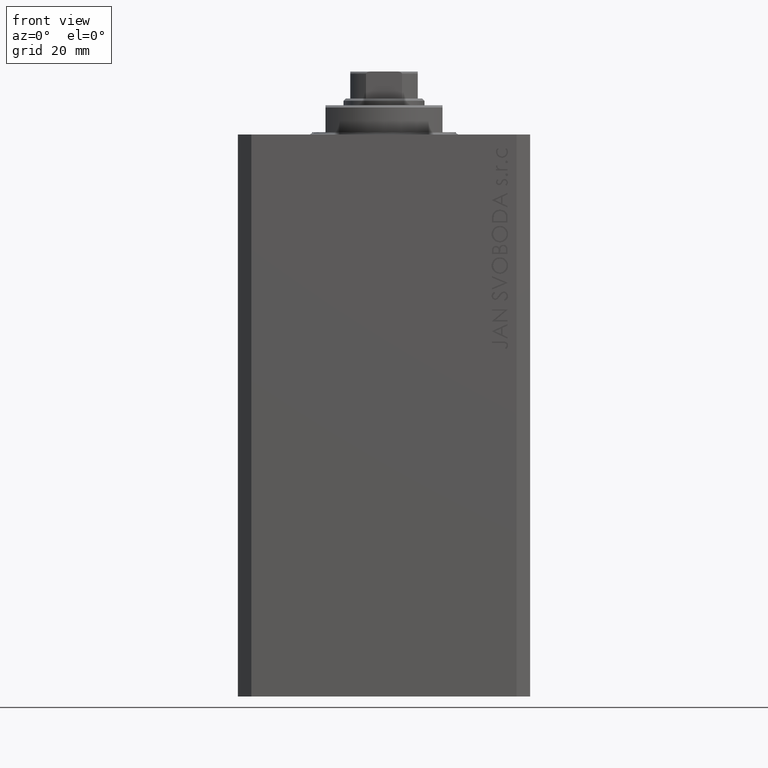
[diagram: clean part render]
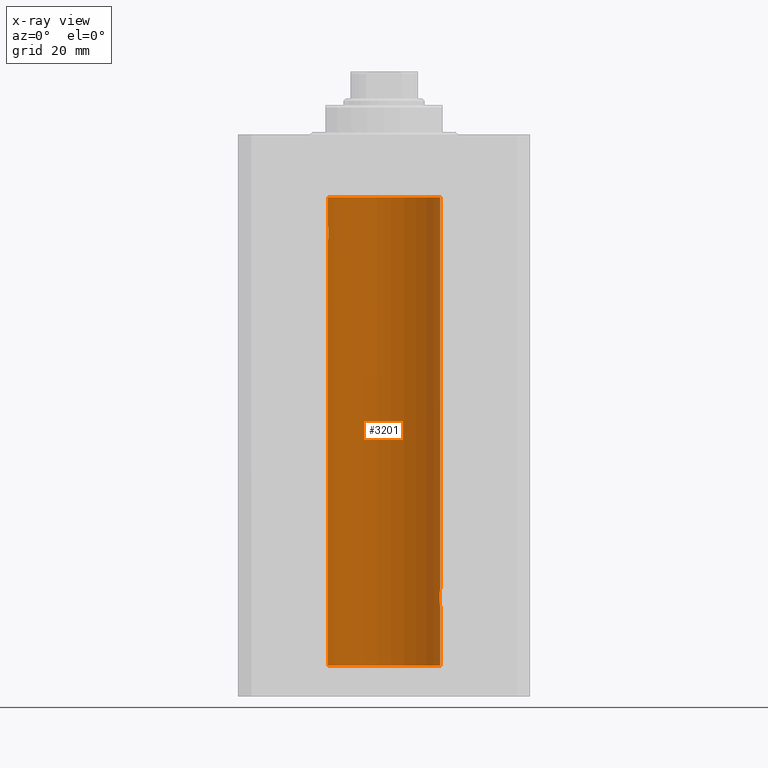
[diagram: x-ray — body ghosted, one internal face saturated and labeled with its STEP entity id]
A machine part, front view, then the same camera in x-ray: the body is ghosted and one INTERNAL B-rep face — a face not visible from any outside direction — is saturated and labeled: STEP entity #3201.
In plain terms, the highlighted cylindrical surface (partial cylindrical patch) has radius 12.5 mm, axis along (0, 0, 1).
Its self-contained STEP definition (entity closure, byte-faithful):
#426 = CARTESIAN_POINT ( 'NONE',  ( 12.48989642018887736, 0.5185418732824252919, -104.9360129218760704 ) ) ;
#544 = CIRCLE ( 'NONE', #29542, 12.50000000000000000 ) ;
#1290 = CARTESIAN_POINT ( 'NONE',  ( -12.34109209020652465, 1.986986967296539897, -22.26269462454597914 ) ) ;
#1530 = CARTESIAN_POINT ( 'NONE',  ( -12.48390768591463207, 0.6455696738844916016, -20.10252270298193977 ) ) ;
#1956 = DIRECTION ( 'NONE',  ( 0.000000000000000000, 0.000000000000000000, 1.000000000000000000 ) ) ;
#2491 = CARTESIAN_POINT ( 'NONE',  ( 0.000000000000000000, 0.000000000000000000, -13.99999999999999822 ) ) ;
#3109 = CARTESIAN_POINT ( 'NONE',  ( 12.50000000000000000, 0.000000000000000000, -118.0999999999999943 ) ) ;
#3201 = ADVANCED_FACE ( 'NONE', ( #31766 ), #5504, .F. ) ;
#4233 = CARTESIAN_POINT ( 'NONE',  ( 12.43016561391612917, 1.322713721413880661, -104.5057887783670054 ) ) ;
#4399 = CARTESIAN_POINT ( 'NONE',  ( -12.43034574091277911, 1.321095788880539024, -23.50733550364322255 ) ) ;
#4461 = CARTESIAN_POINT ( 'NONE',  ( 12.44079900692650931, 1.220007525301739282, -104.5901757908366676 ) ) ;
#4700 = CARTESIAN_POINT ( 'NONE',  ( -12.50000000000000000, 1.867773856434666690E-17, -20.00000000000000000 ) ) ;
#4940 = CARTESIAN_POINT ( 'NONE',  ( 12.39869754437268590, 1.598954131913722820, -104.2293215281301286 ) ) ;
#5168 = VERTEX_POINT ( 'NONE', #37215 ) ;
#5222 = LINE ( 'NONE', #26481, #14578 ) ;
#5504 = CYLINDRICAL_SURFACE ( 'NONE', #31083, 12.50000000000000000 ) ;
#5514 = DIRECTION ( 'NONE',  ( -0.000000000000000000, -0.000000000000000000, 1.000000000000000000 ) ) ;
#6139 = CARTESIAN_POINT ( 'NONE',  ( 12.50000000000000000, -7.266276684081261841E-23, -101.0000000000000000 ) ) ;
#6392 = EDGE_CURVE ( 'NONE', #24433, #45211, #17737, .T. ) ;
#6512 = CARTESIAN_POINT ( 'NONE',  ( 12.37021546997940291, 1.797317011867403114, -102.1129511974108226 ) ) ;
#6740 = CARTESIAN_POINT ( 'NONE',  ( 12.48983962833819028, 0.5199974825204898288, -101.0643516080801874 ) ) ;
#7288 = VERTEX_POINT ( 'NONE', #24265 ) ;
#8211 = CARTESIAN_POINT ( 'NONE',  ( -12.46009879577771606, 1.003863686549169465, -23.73470742397611843 ) ) ;
#8246 = EDGE_CURVE ( 'NONE', #35597, #5168, #18729, .T. ) ;
#8453 = CARTESIAN_POINT ( 'NONE',  ( -12.44076681548080288, 1.220297236145718944, -23.58991408680628155 ) ) ;
#9071 = DIRECTION ( 'NONE',  ( -0.000000000000000000, -0.000000000000000000, 1.000000000000000000 ) ) ;
#9836 = CARTESIAN_POINT ( 'NONE',  ( -12.50000000000000000, 1.530808498934191521E-15, -118.0999999999999943 ) ) ;
#10143 = CARTESIAN_POINT ( 'NONE',  ( -12.50000000000000000, 1.530808498934191521E-15, -118.0999999999999943 ) ) ;
#10199 = EDGE_CURVE ( 'NONE', #35597, #26832, #34867, .T. ) ;
#10544 = CARTESIAN_POINT ( 'NONE',  ( 12.39867611624532806, 1.590019252152828910, -101.7798449592961134 ) ) ;
#10682 = VECTOR ( 'NONE', #5514, 1000.000000000000000 ) ;
#11049 = CARTESIAN_POINT ( 'NONE',  ( 12.50000000000000000, 0.000000000000000000, -118.0999999999999943 ) ) ;
#11386 = VERTEX_POINT ( 'NONE', #9836 ) ;
#11633 = CARTESIAN_POINT ( 'NONE',  ( 12.34779119491631683, 1.947363444907009633, -103.5250277516825861 ) ) ;
#12057 = VECTOR ( 'NONE', #34748, 1000.000000000000000 ) ;
#12062 = B_SPLINE_CURVE_WITH_KNOTS ( 'NONE', 3,
 ( #37658, #14999, #26429, #426, #25736, #36952, #30033, #4461, #4233, #4940, #22157, #11633, #40982, #22850 ),
 .UNSPECIFIED., .F., .F.,
 ( 4, 2, 2, 2, 2, 2, 4 ),
 ( 2.254408494944823136E-18, 0.0003915305205218102386, 0.0007830610410436180920, 0.001174591561565426108, 0.001566122082087234016, 0.002349183123130850048, 0.003132244164174466730 ),
 .UNSPECIFIED. ) ;
#12281 = CARTESIAN_POINT ( 'NONE',  ( -12.35517291625592051, 1.897967064543089721, -22.64415233770293412 ) ) ;
#12528 = CARTESIAN_POINT ( 'NONE',  ( -12.34922241902463114, 1.935814255713574239, -22.51937350851555308 ) ) ;
#14157 = CARTESIAN_POINT ( 'NONE',  ( 12.49788668346399945, 0.2632864803365707607, -101.0130897583833445 ) ) ;
#14578 = VECTOR ( 'NONE', #34363, 1000.000000000000000 ) ;
#14767 = CIRCLE ( 'NONE', #27705, 12.50000000000000000 ) ;
#14999 = CARTESIAN_POINT ( 'NONE',  ( 12.50000000000000178, 0.1324055009716466613, -105.0000000000000426 ) ) ;
#15638 = CARTESIAN_POINT ( 'NONE',  ( -12.46021263690096958, 1.002494658017156981, -20.26446744561863156 ) ) ;
#16280 = CARTESIAN_POINT ( 'NONE',  ( -12.50000000000000000, 1.530808498934191521E-15, -118.0999999999999943 ) ) ;
#17064 = DIRECTION ( 'NONE',  ( 1.000000000000000000, 0.000000000000000000, 0.000000000000000000 ) ) ;
#17273 = CARTESIAN_POINT ( 'NONE',  ( 12.50000000000000000, -7.266276684081261841E-23, -101.0000000000000000 ) ) ;
#17737 = B_SPLINE_CURVE_WITH_KNOTS ( 'NONE', 3,
 ( #37575, #42098, #23972, #42330, #35406, #6512, #46376, #10544, #36120, #32533, #17977, #25125, #20865, #46147, #6740, #14157, #35632, #17273 ),
 .UNSPECIFIED., .F., .F.,
 ( 4, 2, 2, 2, 2, 2, 2, 2, 4 ),
 ( 0.003132244164174466730, 0.003523586189974241625, 0.003914928215774016521, 0.004306270241573791416, 0.004697612267373566311, 0.005088954293173341206, 0.005480296318973116101, 0.005871638344772890997, 0.006262980370572665892 ),
 .UNSPECIFIED. ) ;
#17977 = CARTESIAN_POINT ( 'NONE',  ( 12.44079117518645639, 1.220047488436368122, -101.4098967633508579 ) ) ;
#18729 = B_SPLINE_CURVE_WITH_KNOTS ( 'NONE', 3,
 ( #44507, #23264, #30435, #41157, #1530, #34003, #15638, #45220, #19683, #33774, #37114, #40918, #37828, #44971, #1290, #12528, #12281, #26146, #27092, #34238, #41630, #4399, #8453, #8211, #18978, #37594, #33531, #29972, #30196, #44728 ),
 .UNSPECIFIED., .F., .F.,
 ( 4, 2, 2, 2, 2, 2, 2, 2, 2, 2, 2, 2, 2, 2, 4 ),
 ( 1.814683826656258666E-20, 0.0003914362731607577369, 0.0007828725463215154739, 0.001174308819482273265, 0.001565745092643030948, 0.002348617638964546530, 0.003131490185286061895, 0.003522926458446825216, 0.003914362731607588103, 0.004305799004768351423, 0.004697235277929114744, 0.005088671551089878065, 0.005480107824250641385, 0.005871544097411404706, 0.006262980370572168026 ),
 .UNSPECIFIED. ) ;
#18978 = CARTESIAN_POINT ( 'NONE',  ( -12.46909283808506430, 0.8868029758979402155, -23.79742491916155345 ) ) ;
#19587 = VERTEX_POINT ( 'NONE', #3109 ) ;
#19683 = CARTESIAN_POINT ( 'NONE',  ( -12.43019346654084956, 1.322451657002078340, -20.49398366327208620 ) ) ;
#20067 = VECTOR ( 'NONE', #37289, 1000.000000000000000 ) ;
#20566 = EDGE_CURVE ( 'NONE', #32069, #24433, #12062, .T. ) ;
#20865 = CARTESIAN_POINT ( 'NONE',  ( 12.46910683544638232, 0.8866026273585037032, -101.2024786368969842 ) ) ;
#21119 = EDGE_CURVE ( 'NONE', #45211, #7288, #22726, .T. ) ;
#21320 = EDGE_CURVE ( 'NONE', #19587, #11386, #14767, .T. ) ;
#21926 = CARTESIAN_POINT ( 'NONE',  ( 12.50000000000000000, 2.320363022323678888E-15, -105.0000000000000142 ) ) ;
#22157 = CARTESIAN_POINT ( 'NONE',  ( 12.37760587642916477, 1.747868572747719229, -104.0063965316900152 ) ) ;
#22726 = LINE ( 'NONE', #11049, #20067 ) ;
#22850 = CARTESIAN_POINT ( 'NONE',  ( 12.33896267925302759, 2.000000000000247802, -103.0000000000000142 ) ) ;
#23245 = EDGE_CURVE ( 'NONE', #11386, #5168, #46426, .T. ) ;
#23264 = CARTESIAN_POINT ( 'NONE',  ( -12.50000000000000000, 0.1323736289504353625, -20.00000000000000000 ) ) ;
#23728 = CARTESIAN_POINT ( 'NONE',  ( 12.33896267925302759, 2.000000000000247802, -103.0000000000000142 ) ) ;
#23972 = CARTESIAN_POINT ( 'NONE',  ( 12.34110728646152388, 1.986893050944454453, -102.7366134776498399 ) ) ;
#24265 = CARTESIAN_POINT ( 'NONE',  ( 12.50000000000000000, 0.000000000000000000, -13.99999999999999822 ) ) ;
#24433 = VERTEX_POINT ( 'NONE', #23728 ) ;
#25125 = CARTESIAN_POINT ( 'NONE',  ( 12.46011632531798874, 1.003644408234883434, -101.2651679968767269 ) ) ;
#25736 = CARTESIAN_POINT ( 'NONE',  ( 12.48390005916863110, 0.6457215011736527899, -104.8974277155426762 ) ) ;
#26146 = CARTESIAN_POINT ( 'NONE',  ( -12.37018026341338839, 1.797558627508998086, -22.88656313533016373 ) ) ;
#26288 = CARTESIAN_POINT ( 'NONE',  ( -12.50000000000000000, 1.530808498934191521E-15, -13.99999999999999822 ) ) ;
#26429 = CARTESIAN_POINT ( 'NONE',  ( 12.49789833780794446, 0.2625555164371021766, -104.9869817082215064 ) ) ;
#26481 = CARTESIAN_POINT ( 'NONE',  ( 12.50000000000000000, 0.000000000000000000, -118.0999999999999943 ) ) ;
#26832 = VERTEX_POINT ( 'NONE', #26288 ) ;
#26858 = ORIENTED_EDGE ( 'NONE', *, *, #8246, .T. ) ;
#27092 = CARTESIAN_POINT ( 'NONE',  ( -12.37922086519035325, 1.734998657226764829, -23.00335814299181436 ) ) ;
#27309 = ORIENTED_EDGE ( 'NONE', *, *, #30722, .T. ) ;
#27705 = AXIS2_PLACEMENT_3D ( 'NONE', #34667, #1956, #31094 ) ;
#28029 = DIRECTION ( 'NONE',  ( 0.000000000000000000, 0.000000000000000000, 1.000000000000000000 ) ) ;
#28443 = EDGE_CURVE ( 'NONE', #7288, #26832, #544, .T. ) ;
#29542 = AXIS2_PLACEMENT_3D ( 'NONE', #2491, #28029, #17064 ) ;
#29968 = EDGE_LOOP ( 'NONE', ( #37048, #44435, #27309, #31708, #45437, #31790, #45266, #46236, #26858 ) ) ;
#29972 = CARTESIAN_POINT ( 'NONE',  ( -12.49788564268284041, 0.2633501011236127343, -23.98690384766255335 ) ) ;
#30033 = CARTESIAN_POINT ( 'NONE',  ( 12.46019522898365217, 1.002712894177336223, -104.7354089602760041 ) ) ;
#30196 = CARTESIAN_POINT ( 'NONE',  ( -12.50000000000000533, 0.1306394121199390135, -24.00000000000000711 ) ) ;
#30435 = CARTESIAN_POINT ( 'NONE',  ( -12.49789934882883458, 0.2624928479599910047, -20.01301208516349917 ) ) ;
#30722 = EDGE_CURVE ( 'NONE', #19587, #32069, #5222, .T. ) ;
#31083 = AXIS2_PLACEMENT_3D ( 'NONE', #45595, #9071, #46302 ) ;
#31094 = DIRECTION ( 'NONE',  ( 1.000000000000000000, 0.000000000000000000, 0.000000000000000000 ) ) ;
#31708 = ORIENTED_EDGE ( 'NONE', *, *, #20566, .T. ) ;
#31766 = FACE_OUTER_BOUND ( 'NONE', #29968, .T. ) ;
#31790 = ORIENTED_EDGE ( 'NONE', *, *, #21119, .T. ) ;
#32069 = VERTEX_POINT ( 'NONE', #21926 ) ;
#32533 = CARTESIAN_POINT ( 'NONE',  ( 12.43037348241797524, 1.320834183883837554, -101.4924383770429301 ) ) ;
#33531 = CARTESIAN_POINT ( 'NONE',  ( -12.48983485452574982, 0.5201193324741355539, -23.93561774521849372 ) ) ;
#33774 = CARTESIAN_POINT ( 'NONE',  ( -12.39873273758732175, 1.598680238462371062, -20.77033506126851137 ) ) ;
#34003 = CARTESIAN_POINT ( 'NONE',  ( -12.46903010196599304, 0.8876934327478135378, -20.20300788371381984 ) ) ;
#34238 = CARTESIAN_POINT ( 'NONE',  ( -12.39864157855465088, 1.590288205413973532, -23.21980790594580313 ) ) ;
#34363 = DIRECTION ( 'NONE',  ( -0.000000000000000000, -0.000000000000000000, 1.000000000000000000 ) ) ;
#34667 = CARTESIAN_POINT ( 'NONE',  ( 0.000000000000000000, 0.000000000000000000, -118.0999999999999943 ) ) ;
#34748 = DIRECTION ( 'NONE',  ( -0.000000000000000000, -0.000000000000000000, 1.000000000000000000 ) ) ;
#34867 = LINE ( 'NONE', #16280, #10682 ) ;
#35406 = CARTESIAN_POINT ( 'NONE',  ( 12.35520276972935427, 1.897773362058238877, -102.3552827863433805 ) ) ;
#35597 = VERTEX_POINT ( 'NONE', #4700 ) ;
#35632 = CARTESIAN_POINT ( 'NONE',  ( 12.49999999999999822, 0.1306079576516667173, -100.9999999999999858 ) ) ;
#36120 = CARTESIAN_POINT ( 'NONE',  ( 12.40916530024876430, 1.507117913375715990, -101.6786595504900390 ) ) ;
#36952 = CARTESIAN_POINT ( 'NONE',  ( 12.46901623405144122, 0.8878913781257877780, -104.7968965171755116 ) ) ;
#37048 = ORIENTED_EDGE ( 'NONE', *, *, #23245, .F. ) ;
#37114 = CARTESIAN_POINT ( 'NONE',  ( -12.37764291807175354, 1.747608771958140794, -20.99316879552500481 ) ) ;
#37215 = CARTESIAN_POINT ( 'NONE',  ( -12.50000000000000000, 1.530808426276628993E-15, -23.99999999999999645 ) ) ;
#37289 = DIRECTION ( 'NONE',  ( -0.000000000000000000, -0.000000000000000000, 1.000000000000000000 ) ) ;
#37575 = CARTESIAN_POINT ( 'NONE',  ( 12.33896267925302759, 2.000000000000247802, -103.0000000000000142 ) ) ;
#37594 = CARTESIAN_POINT ( 'NONE',  ( -12.48394649977302073, 0.6448065707253024526, -23.89773031393659153 ) ) ;
#37658 = CARTESIAN_POINT ( 'NONE',  ( 12.50000000000000000, 2.320363022323678888E-15, -105.0000000000000142 ) ) ;
#37828 = CARTESIAN_POINT ( 'NONE',  ( -12.33897869807161385, 1.999901172190678089, -21.73788193668374547 ) ) ;
#40918 = CARTESIAN_POINT ( 'NONE',  ( -12.34781876294798053, 1.947190906025043633, -21.47436412829509678 ) ) ;
#40982 = CARTESIAN_POINT ( 'NONE',  ( 12.33896267925302759, 2.000000000000248246, -103.2614317422078614 ) ) ;
#41157 = CARTESIAN_POINT ( 'NONE',  ( -12.48990118705761532, 0.5184196815546056047, -20.06395648222637007 ) ) ;
#41630 = CARTESIAN_POINT ( 'NONE',  ( -12.40913174964213184, 1.507394620545641439, -23.32102833500698225 ) ) ;
#42098 = CARTESIAN_POINT ( 'NONE',  ( 12.33896267925302581, 2.000000000000247358, -102.8693470594991766 ) ) ;
#42330 = CARTESIAN_POINT ( 'NONE',  ( 12.34924836377099844, 1.935649219704934865, -102.4800206212716489 ) ) ;
#44435 = ORIENTED_EDGE ( 'NONE', *, *, #21320, .F. ) ;
#44507 = CARTESIAN_POINT ( 'NONE',  ( -12.50000000000000000, 1.867773856434666690E-17, -20.00000000000000000 ) ) ;
#44728 = CARTESIAN_POINT ( 'NONE',  ( -12.50000000000000000, 1.530808426276628993E-15, -23.99999999999999645 ) ) ;
#44971 = CARTESIAN_POINT ( 'NONE',  ( -12.33895470450623044, 2.000049200055401766, -22.12992629360264729 ) ) ;
#45211 = VERTEX_POINT ( 'NONE', #6139 ) ;
#45220 = CARTESIAN_POINT ( 'NONE',  ( -12.44082361696003503, 1.219754986802281449, -20.40963319990594016 ) ) ;
#45266 = ORIENTED_EDGE ( 'NONE', *, *, #28443, .T. ) ;
#45437 = ORIENTED_EDGE ( 'NONE', *, *, #6392, .T. ) ;
#45595 = CARTESIAN_POINT ( 'NONE',  ( 0.000000000000000000, 0.000000000000000000, -118.0999999999999943 ) ) ;
#46147 = CARTESIAN_POINT ( 'NONE',  ( 12.48395395845270528, 0.6446573166014707423, -101.1022212421351867 ) ) ;
#46236 = ORIENTED_EDGE ( 'NONE', *, *, #10199, .F. ) ;
#46302 = DIRECTION ( 'NONE',  ( 1.000000000000000000, 0.000000000000000000, 0.000000000000000000 ) ) ;
#46376 = CARTESIAN_POINT ( 'NONE',  ( 12.37925647381943506, 1.734744884174218571, -101.9962073259865178 ) ) ;
#46426 = LINE ( 'NONE', #10143, #12057 ) ;